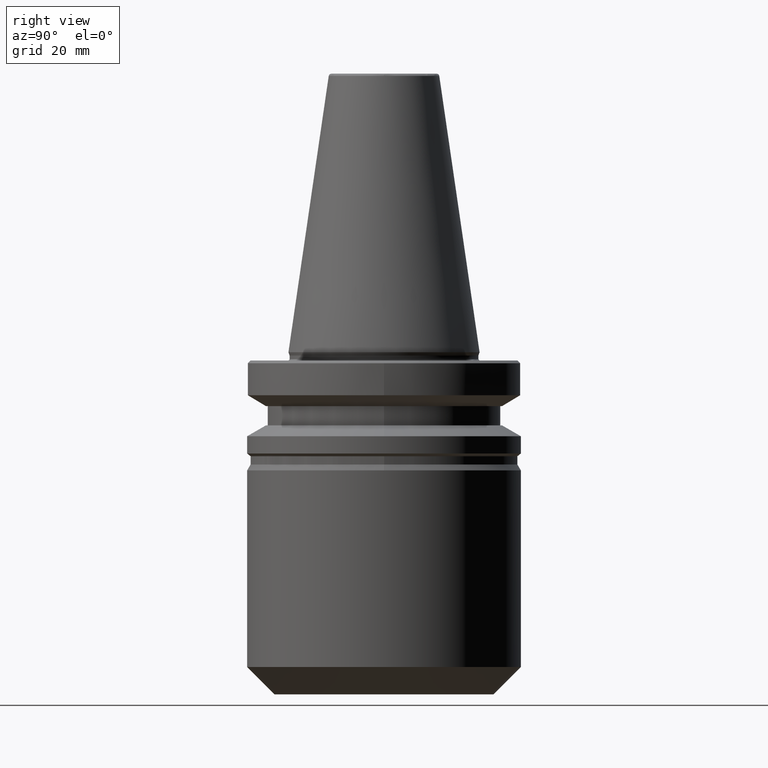
[diagram: clean part render]
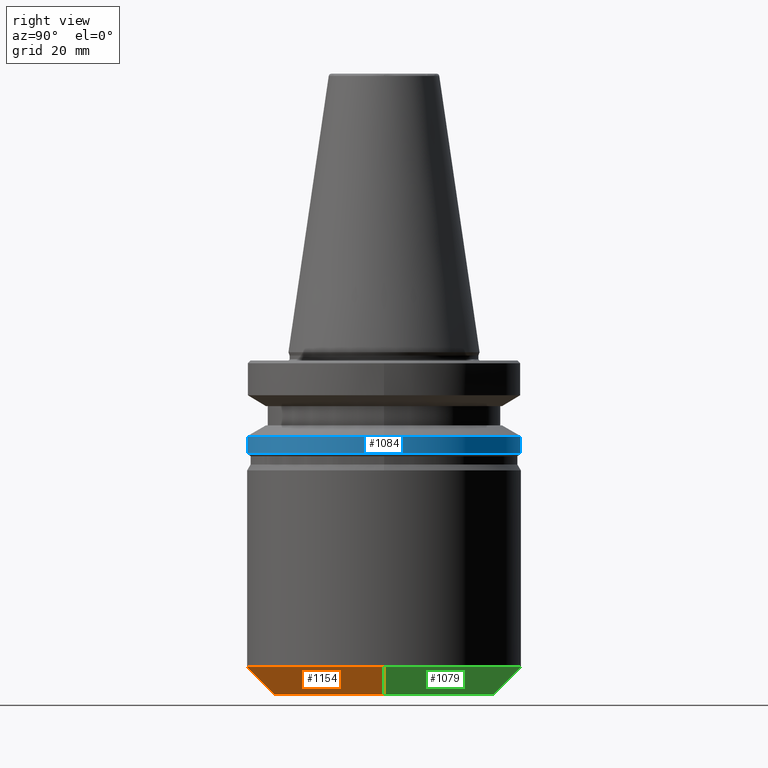
[diagram: same view with three faces highlighted in distinct colors, each labeled with its STEP entity id]
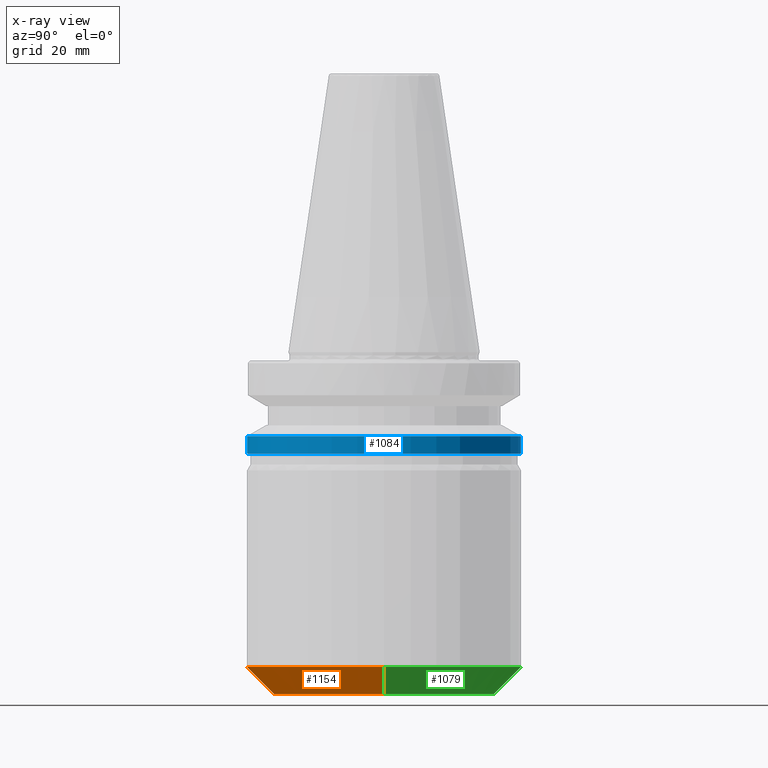
[diagram: x-ray of the same camera — body ghosted, the three highlighted faces saturated]
A machine part, right view with three faces highlighted in distinct colors.
The next image is the same camera in x-ray (body ghosted, the three faces saturated) — at least one of them is partly hidden behind the body in this view.
Their STEP definitions:

[orange] entity #1154 — the highlighted conical surface has half-angle 45 deg.
#16 = AXIS2_PLACEMENT_3D ( 'NONE', #225, #212, #227 ) ;
#94 = AXIS2_PLACEMENT_3D ( 'NONE', #743, #741, #739 ) ;
#123 = CARTESIAN_POINT ( 'NONE',  ( 50.00000000000001400, 0.0000000000000000000, -114.9999999999999900 ) ) ;
#141 = VECTOR ( 'NONE', #485, 999.9999999999998900 ) ;
#212 = DIRECTION ( 'NONE',  ( 0.0000000000000000000, 0.0000000000000000000, 1.000000000000000000 ) ) ;
#225 = CARTESIAN_POINT ( 'NONE',  ( 0.0000000000000000000, 0.0000000000000000000, -114.9999999999999900 ) ) ;
#227 = DIRECTION ( 'NONE',  ( 1.000000000000000000, 0.0000000000000000000, 0.0000000000000000000 ) ) ;
#232 = ORIENTED_EDGE ( 'NONE', *, *, #1122, .F. ) ;
#241 = DIRECTION ( 'NONE',  ( 0.0000000000000000000, -1.000000000000000000, 0.0000000000000000000 ) ) ;
#242 = DIRECTION ( 'NONE',  ( 0.0000000000000000000, -1.387778780781445700E-016, 1.000000000000000000 ) ) ;
#243 = CARTESIAN_POINT ( 'NONE',  ( 0.0000000000000000000, -9.629649721936179300E-031, -114.9999999999999900 ) ) ;
#263 = FACE_OUTER_BOUND ( 'NONE', #450, .T. ) ;
#350 = CIRCLE ( 'NONE', #374, 50.00000000000000000 ) ;
#374 = AXIS2_PLACEMENT_3D ( 'NONE', #243, #242, #241 ) ;
#380 = CARTESIAN_POINT ( 'NONE',  ( 40.00000000000000000, 0.0000000000000000000, -125.0000000000000000 ) ) ;
#398 = CARTESIAN_POINT ( 'NONE',  ( 0.0000000000000000000, -50.00000000000000000, -114.9999999999999900 ) ) ;
#450 = EDGE_LOOP ( 'NONE', ( #518, #1009, #1224, #1297, #232 ) ) ;
#462 = CARTESIAN_POINT ( 'NONE',  ( 50.00000000000001400, 0.0000000000000000000, -114.9999999999999900 ) ) ;
#485 = DIRECTION ( 'NONE',  ( 0.7071067811865477900, 0.0000000000000000000, 0.7071067811865473500 ) ) ;
#496 = VERTEX_POINT ( 'NONE', #788 ) ;
#517 = EDGE_CURVE ( 'NONE', #496, #798, #1012, .T. ) ;
#518 = ORIENTED_EDGE ( 'NONE', *, *, #517, .F. ) ;
#542 = DIRECTION ( 'NONE',  ( 0.0000000000000000000, -1.000000000000000000, 0.0000000000000000000 ) ) ;
#543 = DIRECTION ( 'NONE',  ( 0.0000000000000000000, -1.387778780781445700E-016, 1.000000000000000000 ) ) ;
#544 = CARTESIAN_POINT ( 'NONE',  ( 0.0000000000000000000, -9.629649721936179300E-031, -114.9999999999999900 ) ) ;
#547 = CARTESIAN_POINT ( 'NONE',  ( -50.00000000000001400, 6.123233995736767700E-015, -114.9999999999999900 ) ) ;
#556 = EDGE_CURVE ( 'NONE', #496, #945, #1030, .T. ) ;
#739 = DIRECTION ( 'NONE',  ( 1.000000000000000000, 0.0000000000000000000, 0.0000000000000000000 ) ) ;
#741 = DIRECTION ( 'NONE',  ( 0.0000000000000000000, 0.0000000000000000000, 1.000000000000000000 ) ) ;
#743 = CARTESIAN_POINT ( 'NONE',  ( 0.0000000000000000000, 0.0000000000000000000, -125.0000000000000000 ) ) ;
#761 = DIRECTION ( 'NONE',  ( -0.7071067811865477900, 8.659560562354936600E-017, 0.7071067811865473500 ) ) ;
#772 = CARTESIAN_POINT ( 'NONE',  ( -50.00000000000001400, 6.123233995736767700E-015, -114.9999999999999900 ) ) ;
#788 = CARTESIAN_POINT ( 'NONE',  ( -40.00000000000000000, 5.510910596163090300E-015, -125.0000000000000000 ) ) ;
#798 = VERTEX_POINT ( 'NONE', #547 ) ;
#801 = EDGE_CURVE ( 'NONE', #932, #1287, #951, .T. ) ;
#877 = EDGE_CURVE ( 'NONE', #945, #1287, #1292, .T. ) ;
#932 = VERTEX_POINT ( 'NONE', #398 ) ;
#945 = VERTEX_POINT ( 'NONE', #380 ) ;
#951 = CIRCLE ( 'NONE', #1326, 50.00000000000000000 ) ;
#1009 = ORIENTED_EDGE ( 'NONE', *, *, #556, .T. ) ;
#1012 = LINE ( 'NONE', #772, #1026 ) ;
#1026 = VECTOR ( 'NONE', #761, 999.9999999999998900 ) ;
#1030 = CIRCLE ( 'NONE', #94, 40.00000000000000000 ) ;
#1122 = EDGE_CURVE ( 'NONE', #798, #932, #350, .T. ) ;
#1154 = ADVANCED_FACE ( 'NONE', ( #263 ), #1250, .T. ) ;
#1224 = ORIENTED_EDGE ( 'NONE', *, *, #877, .T. ) ;
#1250 = CONICAL_SURFACE ( 'NONE', #16, 50.00000000000001400, 0.7853981633974485000 ) ;
#1287 = VERTEX_POINT ( 'NONE', #123 ) ;
#1292 = LINE ( 'NONE', #462, #141 ) ;
#1297 = ORIENTED_EDGE ( 'NONE', *, *, #801, .F. ) ;
#1326 = AXIS2_PLACEMENT_3D ( 'NONE', #544, #543, #542 ) ;

[blue] entity #1084 — the highlighted cylindrical surface (partial cylindrical patch) has radius 50 mm, axis along (0, -0, 1).
#27 = VECTOR ( 'NONE', #468, 1000.000000000000000 ) ;
#38 = ORIENTED_EDGE ( 'NONE', *, *, #817, .F. ) ;
#64 = VERTEX_POINT ( 'NONE', #1115 ) ;
#103 = LINE ( 'NONE', #511, #27 ) ;
#127 = AXIS2_PLACEMENT_3D ( 'NONE', #520, #519, #515 ) ;
#149 = DIRECTION ( 'NONE',  ( 1.000000000000000000, 0.0000000000000000000, 0.0000000000000000000 ) ) ;
#153 = DIRECTION ( 'NONE',  ( -0.0000000000000000000, -0.0000000000000000000, -1.000000000000000000 ) ) ;
#156 = CARTESIAN_POINT ( 'NONE',  ( 0.0000000000000000000, 0.0000000000000000000, -36.99999999999996400 ) ) ;
#186 = EDGE_LOOP ( 'NONE', ( #339, #1142, #38, #961, #1028, #1110 ) ) ;
#218 = LINE ( 'NONE', #1117, #271 ) ;
#255 = VERTEX_POINT ( 'NONE', #880 ) ;
#260 = CARTESIAN_POINT ( 'NONE',  ( 6.123233995736770000E-015, 50.00000000000003600, -30.68080587730775800 ) ) ;
#264 = EDGE_CURVE ( 'NONE', #903, #1102, #218, .T. ) ;
#267 = AXIS2_PLACEMENT_3D ( 'NONE', #584, #581, #579 ) ;
#271 = VECTOR ( 'NONE', #896, 1000.000000000000000 ) ;
#287 = CARTESIAN_POINT ( 'NONE',  ( 0.0000000000000000000, 0.0000000000000000000, -37.00000000000000000 ) ) ;
#288 = DIRECTION ( 'NONE',  ( 0.0000000000000000000, -1.000000000000000000, -1.387778780781445700E-016 ) ) ;
#296 = CIRCLE ( 'NONE', #127, 50.00000000000003600 ) ;
#318 = CARTESIAN_POINT ( 'NONE',  ( 50.00000000000003600, 6.123233995736770800E-015, -30.68080587730775800 ) ) ;
#339 = ORIENTED_EDGE ( 'NONE', *, *, #899, .F. ) ;
#341 = DIRECTION ( 'NONE',  ( 0.0000000000000000000, -6.938893903907228400E-017, 1.000000000000000000 ) ) ;
#445 = DIRECTION ( 'NONE',  ( 1.000000000000000000, 0.0000000000000000000, 0.0000000000000000000 ) ) ;
#447 = DIRECTION ( 'NONE',  ( -0.0000000000000000000, -0.0000000000000000000, -1.000000000000000000 ) ) ;
#448 = CARTESIAN_POINT ( 'NONE',  ( 0.0000000000000000000, 0.0000000000000000000, -36.99999999999996400 ) ) ;
#461 = AXIS2_PLACEMENT_3D ( 'NONE', #448, #447, #445 ) ;
#468 = DIRECTION ( 'NONE',  ( 0.0000000000000000000, -6.938893903907228400E-017, 1.000000000000000000 ) ) ;
#473 = CARTESIAN_POINT ( 'NONE',  ( 6.123233995736770000E-015, 50.00000000000003600, -36.99999999999996400 ) ) ;
#499 = AXIS2_PLACEMENT_3D ( 'NONE', #287, #341, #288 ) ;
#511 = CARTESIAN_POINT ( 'NONE',  ( 0.0000000000000000000, -50.00000000000000000, -37.00000000000000700 ) ) ;
#515 = DIRECTION ( 'NONE',  ( 1.000000000000000000, 0.0000000000000000000, 0.0000000000000000000 ) ) ;
#519 = DIRECTION ( 'NONE',  ( -0.0000000000000000000, -0.0000000000000000000, 1.000000000000000000 ) ) ;
#520 = CARTESIAN_POINT ( 'NONE',  ( 0.0000000000000000000, 0.0000000000000000000, -30.68080587730775800 ) ) ;
#579 = DIRECTION ( 'NONE',  ( 1.000000000000000000, 0.0000000000000000000, 0.0000000000000000000 ) ) ;
#581 = DIRECTION ( 'NONE',  ( -0.0000000000000000000, -0.0000000000000000000, 1.000000000000000000 ) ) ;
#584 = CARTESIAN_POINT ( 'NONE',  ( 0.0000000000000000000, 0.0000000000000000000, -30.68080587730775800 ) ) ;
#603 = CARTESIAN_POINT ( 'NONE',  ( 0.0000000000000000000, -50.00000000000003600, -30.68080587730775800 ) ) ;
#718 = VERTEX_POINT ( 'NONE', #603 ) ;
#727 = EDGE_CURVE ( 'NONE', #718, #1029, #967, .T. ) ;
#817 = EDGE_CURVE ( 'NONE', #1029, #1102, #296, .T. ) ;
#863 = EDGE_CURVE ( 'NONE', #64, #718, #103, .T. ) ;
#880 = CARTESIAN_POINT ( 'NONE',  ( 50.00000000000003600, 0.0000000000000000000, -36.99999999999996400 ) ) ;
#896 = DIRECTION ( 'NONE',  ( 0.0000000000000000000, -6.938893903907228400E-017, 1.000000000000000000 ) ) ;
#899 = EDGE_CURVE ( 'NONE', #903, #255, #909, .T. ) ;
#903 = VERTEX_POINT ( 'NONE', #473 ) ;
#909 = CIRCLE ( 'NONE', #461, 50.00000000000003600 ) ;
#961 = ORIENTED_EDGE ( 'NONE', *, *, #727, .F. ) ;
#967 = CIRCLE ( 'NONE', #267, 50.00000000000003600 ) ;
#981 = FACE_OUTER_BOUND ( 'NONE', #186, .T. ) ;
#1028 = ORIENTED_EDGE ( 'NONE', *, *, #863, .F. ) ;
#1029 = VERTEX_POINT ( 'NONE', #318 ) ;
#1034 = CYLINDRICAL_SURFACE ( 'NONE', #499, 50.00000000000000000 ) ;
#1084 = ADVANCED_FACE ( 'NONE', ( #981 ), #1034, .T. ) ;
#1102 = VERTEX_POINT ( 'NONE', #260 ) ;
#1110 = ORIENTED_EDGE ( 'NONE', *, *, #1232, .F. ) ;
#1115 = CARTESIAN_POINT ( 'NONE',  ( 0.0000000000000000000, -50.00000000000003600, -36.99999999999996400 ) ) ;
#1117 = CARTESIAN_POINT ( 'NONE',  ( 6.123233995736766100E-015, 50.00000000000000000, -36.99999999999999300 ) ) ;
#1121 = AXIS2_PLACEMENT_3D ( 'NONE', #156, #153, #149 ) ;
#1142 = ORIENTED_EDGE ( 'NONE', *, *, #264, .T. ) ;
#1232 = EDGE_CURVE ( 'NONE', #255, #64, #1307, .T. ) ;
#1307 = CIRCLE ( 'NONE', #1121, 50.00000000000003600 ) ;

[green] entity #1079 — the highlighted conical surface has half-angle 45 deg.
#25 = AXIS2_PLACEMENT_3D ( 'NONE', #182, #179, #178 ) ;
#48 = EDGE_CURVE ( 'NONE', #1287, #1272, #1075, .T. ) ;
#51 = DIRECTION ( 'NONE',  ( 0.0000000000000000000, -1.000000000000000000, 0.0000000000000000000 ) ) ;
#52 = DIRECTION ( 'NONE',  ( 0.0000000000000000000, -1.387778780781445700E-016, 1.000000000000000000 ) ) ;
#55 = CARTESIAN_POINT ( 'NONE',  ( 0.0000000000000000000, -9.629649721936179300E-031, -114.9999999999999900 ) ) ;
#122 = CARTESIAN_POINT ( 'NONE',  ( 6.123233995736766100E-015, 50.00000000000000000, -114.9999999999999900 ) ) ;
#123 = CARTESIAN_POINT ( 'NONE',  ( 50.00000000000001400, 0.0000000000000000000, -114.9999999999999900 ) ) ;
#141 = VECTOR ( 'NONE', #485, 999.9999999999998900 ) ;
#176 = CIRCLE ( 'NONE', #667, 50.00000000000000000 ) ;
#178 = DIRECTION ( 'NONE',  ( 1.000000000000000000, 0.0000000000000000000, 0.0000000000000000000 ) ) ;
#179 = DIRECTION ( 'NONE',  ( 0.0000000000000000000, 0.0000000000000000000, 1.000000000000000000 ) ) ;
#182 = CARTESIAN_POINT ( 'NONE',  ( 0.0000000000000000000, 0.0000000000000000000, -125.0000000000000000 ) ) ;
#272 = EDGE_LOOP ( 'NONE', ( #533, #1221, #308, #594, #1039 ) ) ;
#295 = DIRECTION ( 'NONE',  ( 1.000000000000000000, 0.0000000000000000000, 0.0000000000000000000 ) ) ;
#308 = ORIENTED_EDGE ( 'NONE', *, *, #1346, .F. ) ;
#313 = DIRECTION ( 'NONE',  ( 0.0000000000000000000, 0.0000000000000000000, 1.000000000000000000 ) ) ;
#315 = CARTESIAN_POINT ( 'NONE',  ( 0.0000000000000000000, 0.0000000000000000000, -114.9999999999999900 ) ) ;
#328 = CONICAL_SURFACE ( 'NONE', #514, 50.00000000000001400, 0.7853981633974485000 ) ;
#380 = CARTESIAN_POINT ( 'NONE',  ( 40.00000000000000000, 0.0000000000000000000, -125.0000000000000000 ) ) ;
#462 = CARTESIAN_POINT ( 'NONE',  ( 50.00000000000001400, 0.0000000000000000000, -114.9999999999999900 ) ) ;
#485 = DIRECTION ( 'NONE',  ( 0.7071067811865477900, 0.0000000000000000000, 0.7071067811865473500 ) ) ;
#496 = VERTEX_POINT ( 'NONE', #788 ) ;
#514 = AXIS2_PLACEMENT_3D ( 'NONE', #315, #313, #295 ) ;
#517 = EDGE_CURVE ( 'NONE', #496, #798, #1012, .T. ) ;
#523 = FACE_OUTER_BOUND ( 'NONE', #272, .T. ) ;
#533 = ORIENTED_EDGE ( 'NONE', *, *, #1166, .T. ) ;
#547 = CARTESIAN_POINT ( 'NONE',  ( -50.00000000000001400, 6.123233995736767700E-015, -114.9999999999999900 ) ) ;
#594 = ORIENTED_EDGE ( 'NONE', *, *, #48, .F. ) ;
#667 = AXIS2_PLACEMENT_3D ( 'NONE', #55, #52, #51 ) ;
#761 = DIRECTION ( 'NONE',  ( -0.7071067811865477900, 8.659560562354936600E-017, 0.7071067811865473500 ) ) ;
#772 = CARTESIAN_POINT ( 'NONE',  ( -50.00000000000001400, 6.123233995736767700E-015, -114.9999999999999900 ) ) ;
#788 = CARTESIAN_POINT ( 'NONE',  ( -40.00000000000000000, 5.510910596163090300E-015, -125.0000000000000000 ) ) ;
#798 = VERTEX_POINT ( 'NONE', #547 ) ;
#877 = EDGE_CURVE ( 'NONE', #945, #1287, #1292, .T. ) ;
#945 = VERTEX_POINT ( 'NONE', #380 ) ;
#1004 = DIRECTION ( 'NONE',  ( 0.0000000000000000000, -1.387778780781445700E-016, 1.000000000000000000 ) ) ;
#1012 = LINE ( 'NONE', #772, #1026 ) ;
#1026 = VECTOR ( 'NONE', #761, 999.9999999999998900 ) ;
#1039 = ORIENTED_EDGE ( 'NONE', *, *, #877, .F. ) ;
#1075 = CIRCLE ( 'NONE', #1161, 50.00000000000000000 ) ;
#1079 = ADVANCED_FACE ( 'NONE', ( #523 ), #328, .T. ) ;
#1135 = CARTESIAN_POINT ( 'NONE',  ( 0.0000000000000000000, -9.629649721936179300E-031, -114.9999999999999900 ) ) ;
#1161 = AXIS2_PLACEMENT_3D ( 'NONE', #1135, #1004, #1237 ) ;
#1166 = EDGE_CURVE ( 'NONE', #945, #496, #1280, .T. ) ;
#1221 = ORIENTED_EDGE ( 'NONE', *, *, #517, .T. ) ;
#1237 = DIRECTION ( 'NONE',  ( 0.0000000000000000000, -1.000000000000000000, 0.0000000000000000000 ) ) ;
#1272 = VERTEX_POINT ( 'NONE', #122 ) ;
#1280 = CIRCLE ( 'NONE', #25, 40.00000000000000000 ) ;
#1287 = VERTEX_POINT ( 'NONE', #123 ) ;
#1292 = LINE ( 'NONE', #462, #141 ) ;
#1346 = EDGE_CURVE ( 'NONE', #1272, #798, #176, .T. ) ;